MODEL slx_dba0677ccd63
KIND model
CONFIG AbsTol = auto
CONFIG EnableMultiTasking = off
CONFIG FixedStep = 0.01
CONFIG MaxStep = auto
CONFIG MinStep = auto
CONFIG RelTol = 1e-3
CONFIG SampleTimeConstraint = Unconstrained
CONFIG Solver = FixedStepAuto
CONFIG SolverName = FixedStepAuto
CONFIG StartTime = 0
CONFIG StopTime = 45
BLOCK [Sum] Add
  InputSameDT = off
  OutDataTypeStr = Inherit: Inherit via internal rule
  Ports = [2, 1]
  SaturateOnIntegerOverflow = off
BLOCK [SubSystem] Angle Limit
  ErrorFcn = Stateflow.Translate.translate
  PermitHierarchicalResolution = ExplicitOnly
  Ports = [1, 1]
  RequestExecContextInheritance = off
  SFBlockType = MATLAB Function
  TreatAsAtomicUnit = on
  Variant = off
BLOCK [Demux] Angle Limit/ Demux 
  Outputs = 1
  Ports = [1, 1]
BLOCK [S-Function] Angle Limit/ SFunction 
  EnableBusSupport = on
  FunctionName = sf_sfun
  PortCounts = [1 2]
  Ports = [1, 2]
  SFcnIsStateOwnerBlock = off
  SFunctionDeploymentMode = off
  Tag = Stateflow S-Function vehicle_animation_sim 5
BLOCK [Terminator] Angle Limit/ Terminator 
BLOCK [Outport] Angle Limit/beta
  IconDisplay = Port number
BLOCK [Inport] Angle Limit/beta 
  IconDisplay = Port number
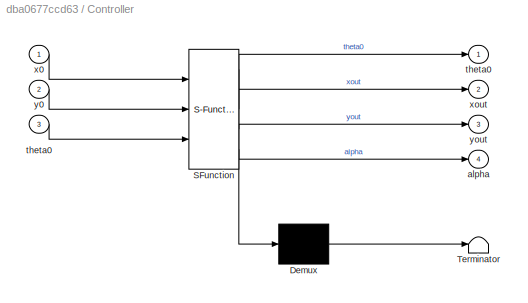
BLOCK [SubSystem] Controller
  ErrorFcn = Stateflow.Translate.translate
  PermitHierarchicalResolution = ExplicitOnly
  Ports = [3, 4]
  RequestExecContextInheritance = off
  SFBlockType = MATLAB Function
  TreatAsAtomicUnit = on
  Variant = off
BLOCK [Demux] Controller/ Demux 
  Outputs = 1
  Ports = [1, 1]
BLOCK [S-Function] Controller/ SFunction 
  EnableBusSupport = on
  FunctionName = sf_sfun
  Parameters = PointMatrix
  PortCounts = [3 5]
  Ports = [3, 5]
  SFcnIsStateOwnerBlock = off
  SFunctionDeploymentMode = off
  Tag = Stateflow S-Function vehicle_animation_sim 1
BLOCK [Terminator] Controller/ Terminator 
BLOCK [Outport] Controller/alpha
  IconDisplay = Port number
  Port = 4
BLOCK [Outport] Controller/theta0
  IconDisplay = Port number
BLOCK [Inport] Controller/theta0 
  IconDisplay = Port number
  Port = 3
BLOCK [Inport] Controller/x0
  IconDisplay = Port number
BLOCK [Outport] Controller/xout
  IconDisplay = Port number
  Port = 2
BLOCK [Inport] Controller/y0
  IconDisplay = Port number
  Port = 2
BLOCK [Outport] Controller/yout
  IconDisplay = Port number
  Port = 3
BLOCK [Demux] Demux
  DisplayOption = bar
  Outputs = 3
  Ports = [1, 3]
BLOCK [Gain] Gain
  OutDataTypeStr = Inherit: Inherit via internal rule
  ParamDataTypeStr = Inherit: Inherit via internal rule
  SaturateOnIntegerOverflow = off
BLOCK [Gain] Gain1
  Gain = 1000
  OutDataTypeStr = Inherit: Inherit via internal rule
  ParamDataTypeStr = Inherit: Inherit via internal rule
  SaturateOnIntegerOverflow = off
BLOCK [Integrator] Integrator
  Ports = [1, 1]
BLOCK [Mux] Mux
  DisplayOption = bar
  Inputs = 2
  Ports = [2, 1]
BLOCK [Mux] Mux1
  DisplayOption = bar
  Ports = [4, 1]
BLOCK [Mux] Mux3
  DisplayOption = bar
  Inputs = 3
  Ports = [3, 1]
BLOCK [SubSystem] Simple kinematic vehicle model 
  Ports = [2, 3]
  RequestExecContextInheritance = off
  Variant = off
BLOCK [Inport] Simple kinematic vehicle model /Beta
  IconDisplay = Port number
  Port = 2
BLOCK [Demux] Simple kinematic vehicle model /Demux
  DisplayOption = bar
  Outputs = 3
  Ports = [1, 3]
BLOCK [Integrator] Simple kinematic vehicle model /Integrator
  Ports = [1, 1]
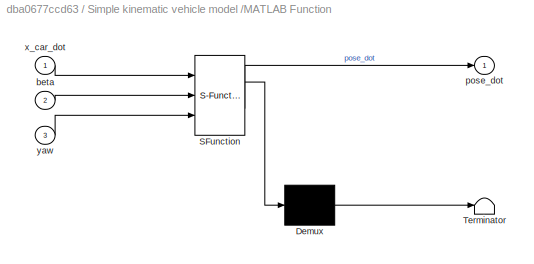
BLOCK [SubSystem] Simple kinematic vehicle model /MATLAB Function
  ErrorFcn = Stateflow.Translate.translate
  PermitHierarchicalResolution = ExplicitOnly
  Ports = [3, 1]
  RequestExecContextInheritance = off
  SFBlockType = MATLAB Function
  TreatAsAtomicUnit = on
  Variant = off
BLOCK [Demux] Simple kinematic vehicle model /MATLAB Function/ Demux 
  Outputs = 1
  Ports = [1, 1]
BLOCK [S-Function] Simple kinematic vehicle model /MATLAB Function/ SFunction 
  EnableBusSupport = on
  FunctionName = sf_sfun
  PortCounts = [3 2]
  Ports = [3, 2]
  SFcnIsStateOwnerBlock = off
  SFunctionDeploymentMode = off
  Tag = Stateflow S-Function vehicle_animation_sim 2
BLOCK [Terminator] Simple kinematic vehicle model /MATLAB Function/ Terminator 
BLOCK [Inport] Simple kinematic vehicle model /MATLAB Function/beta
  IconDisplay = Port number
  Port = 2
BLOCK [Outport] Simple kinematic vehicle model /MATLAB Function/pose_dot
  IconDisplay = Port number
BLOCK [Inport] Simple kinematic vehicle model /MATLAB Function/x_car_dot
  IconDisplay = Port number
BLOCK [Inport] Simple kinematic vehicle model /MATLAB Function/yaw
  IconDisplay = Port number
  Port = 3
BLOCK [Inport] Simple kinematic vehicle model /Speed
  IconDisplay = Port number
BLOCK [Outport] Simple kinematic vehicle model /X_gl
  IconDisplay = Port number
BLOCK [Outport] Simple kinematic vehicle model /Y_gl
  IconDisplay = Port number
  Port = 2
BLOCK [Outport] Simple kinematic vehicle model /yaw
  IconDisplay = Port number
  Port = 3
BLOCK [Constant] Speed
BLOCK [ToWorkspace] To Workspace
  FixptAsFi = on
  MaxDataPoints = inf
  Ports = [1]
  SampleTime = -1
  Save2DSignal = 2-D array (concatenate along first dimension)
  VariableName = xy
BLOCK [Reference] XY Graph  REF=simulink/Sinks/XY Graph
  Ports = [2]
  SourceBlock = simulink/Sinks/XY Graph
  SourceProductBaseCode = SL
  SourceProductName = Simulink
  SourceType = XY scope.
BLOCK [SubSystem] plot 2D planar vehicle
  Ports = [1]
  RequestExecContextInheritance = off
  Variant = off
BLOCK [S-Function] plot 2D planar vehicle/Animation S-Function
  EnableBusSupport = off
  FunctionName = sanim_XY_vehicle_viz
  Parameters = Config
  Ports = [1]
  SFcnIsStateOwnerBlock = off
  SFunctionDeploymentMode = off
BLOCK [RateTransition] plot 2D planar vehicle/Rate Transition
  Integrity = off
BLOCK [Inport] plot 2D planar vehicle/[X (m), Y (m), psi (rad), delta (rad)]
  IconDisplay = Port number
BLOCK [SubSystem] run setup_tracked_a.m
  OpenFcn = setup
  Ports = []
  RequestExecContextInheritance = off
  Variant = off
BLOCK [Ground] run setup_tracked_a.m/Ground1
BLOCK [Terminator] run setup_tracked_a.m/Terminator3
BLOCK [SubSystem] run setup_tracked_a.m1
  OpenFcn = edit setup
  Ports = []
  RequestExecContextInheritance = off
  Variant = off
BLOCK [Ground] run setup_tracked_a.m1/Ground1
BLOCK [Terminator] run setup_tracked_a.m1/Terminator3
ANNOTATION (root): 2D Vehicle Visualization Planar top-down animation. SAE Coordinates.
ANNOTATION (root): Marc Compere <email> created : 30 July 2011 modified: 17 Jan 2016
LINE Add:1 -> Angle Limit:1
NET Angle Limit:1 -> Mux1:4, Simple kinematic vehicle model :2
LINE Controller:2 -> XY Graph:1
LINE Controller:3 -> XY Graph:2
NET Controller:4 -> Gain1:1, Gain:1
LINE Demux:1 -> Controller:1
LINE Demux:2 -> Controller:2
NET Demux:3 -> Controller:3, Mux1:3
LINE Gain1:1 -> Integrator:1
LINE Gain:1 -> Add:1
LINE Integrator:1 -> Add:2
LINE Mux1:1 -> plot 2D planar vehicle:1
LINE Mux3:1 -> Demux:1
LINE Mux:1 -> To Workspace:1
LINE Simple kinematic vehicle model /Beta:1 -> Simple kinematic vehicle model /MATLAB Function:2
LINE Simple kinematic vehicle model /Demux:1 -> Simple kinematic vehicle model /X_gl:1
LINE Simple kinematic vehicle model /Demux:2 -> Simple kinematic vehicle model /Y_gl:1
NET Simple kinematic vehicle model /Demux:3 -> Simple kinematic vehicle model /MATLAB Function:3, Simple kinematic vehicle model /yaw:1
LINE Simple kinematic vehicle model /Integrator:1 -> Simple kinematic vehicle model /Demux:1
LINE Simple kinematic vehicle model /MATLAB Function:1 -> Simple kinematic vehicle model /Integrator:1
LINE Simple kinematic vehicle model /Speed:1 -> Simple kinematic vehicle model /MATLAB Function:1
NET Simple kinematic vehicle model :1 -> Mux1:1, Mux3:1, Mux:1
NET Simple kinematic vehicle model :2 -> Mux1:2, Mux3:2, Mux:2
LINE Simple kinematic vehicle model :3 -> Mux3:3
LINE Speed:1 -> Simple kinematic vehicle model :1
LINE plot 2D planar vehicle/Rate Transition:1 -> plot 2D planar vehicle/Animation S-Function:1
LINE plot 2D planar vehicle/[X (m), Y (m), psi (rad), delta (rad)]:1 -> plot 2D planar vehicle/Rate Transition:1
LINE run setup_tracked_a.m/Ground1:1 -> run setup_tracked_a.m/Terminator3:1
LINE run setup_tracked_a.m1/Ground1:1 -> run setup_tracked_a.m1/Terminator3:1
note: NET lines group one-source signal fan-out (src -> all destinations, sorted); 1:1 wires keep LINE
CHART Controller states=1 transitions=1
  STATE_LABEL 'eML_blk_kernel()'
  STATE_LABEL 'SCRIPT:\nfunction [theta0,xout,yout,alpha] = fcn(x0,y0,theta0,PointMatrix)\n\n% Define constants\nLOWERDIST = 3.2;\nUPPERDIST = 3.6;\nVIEWING_ANGLE = 90*pi()/180;  %90 degrees in radians\nWHEEL_BASE = 1.62;\n\n% find the path length\nszpm = size(PointMatrix);\n\n% initialize the variables. \nxout = PointMatrix(szpm(1,1),1);\nyout = PointMatrix(szpm(1,1),2);\nalpha = 0;\n\n\nfor i = 1:szpm(1,1)\n    %translate to the...<+1128ch>'
CHART Simple kinematic 
vehicle model
/MATLAB Function states=1 transitions=1
  STATE_LABEL 'eML_blk_kernel()'
  STATE_LABEL 'SCRIPT:\nfunction pose_dot  = fcn(x_car_dot,beta,yaw)\nW = 1.64;\ntheta = tan(beta)/W;\npose_dot = [cos(yaw)*x_car_dot\n            sin(yaw)*x_car_dot\n               theta*x_car_dot];\n'
CHART Angle Limit states=1 transitions=1
  STATE_LABEL 'eML_blk_kernel()'
  STATE_LABEL 'SCRIPT:\nfunction beta = fcn(beta)\n\nif beta > 22000/43408.5889\n    beta = 22000/43408.5889;\n    \nelseif beta < -22000/43408.5889\n    beta = -22000/43408.5889;  \n\nend\n'
